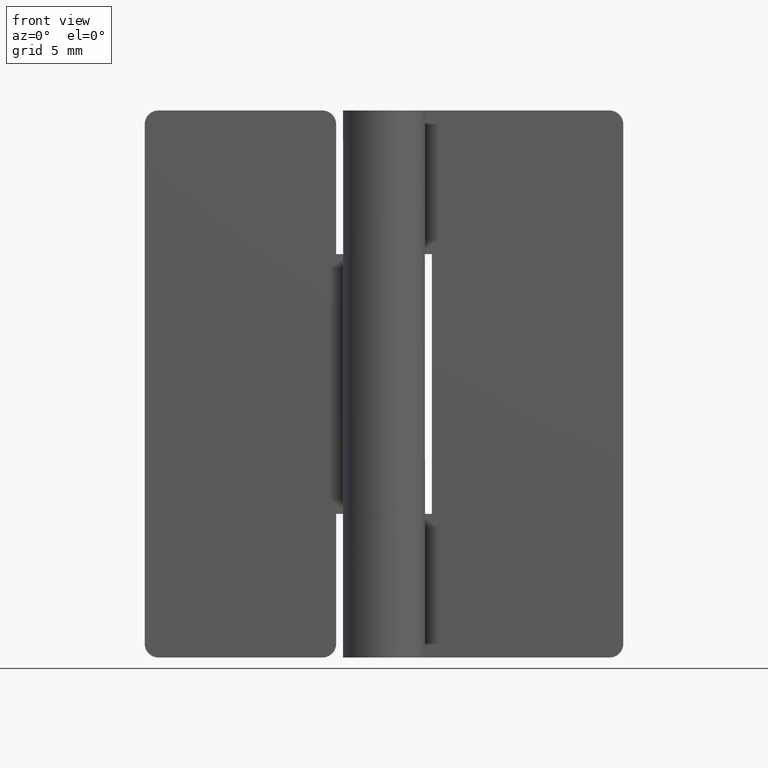
[diagram: clean part render]
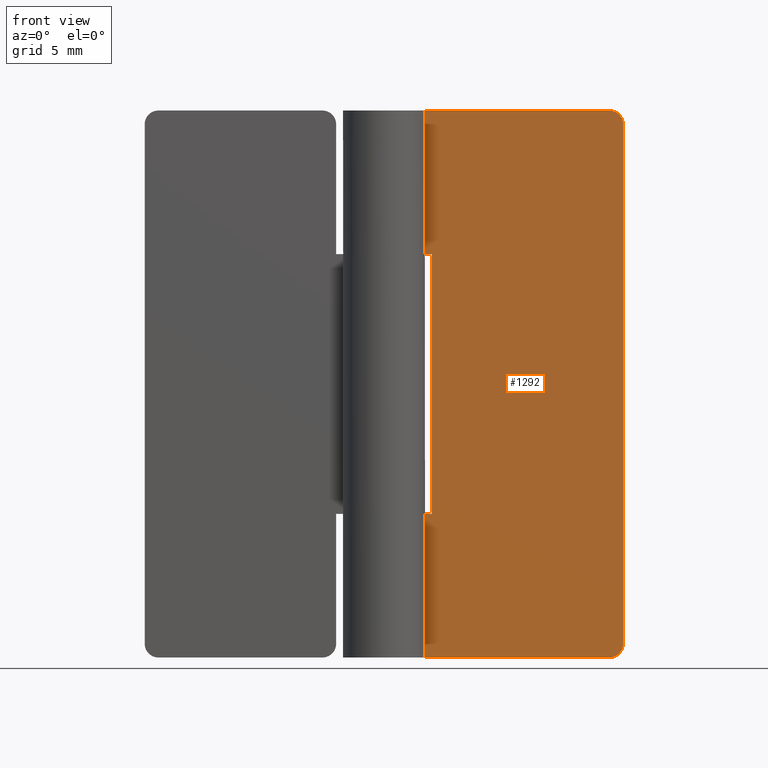
[diagram: same view with one face highlighted and labeled with its STEP entity id]
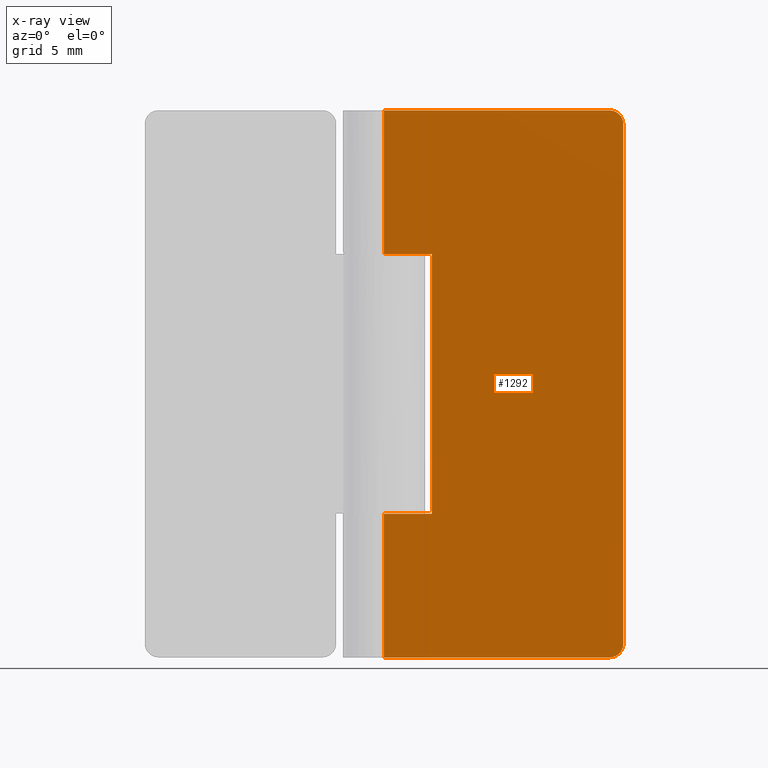
[diagram: x-ray of the same camera — body ghosted, the highlighted face saturated]
A machine part, front view. The second image highlights one B-rep face of the part: STEP entity #1292.
The next image is the same camera in x-ray: the body ghosted, the highlighted face saturated — about 0% of this face is hidden behind the body in this view.
In plain terms, the highlighted face is a freeform B-spline surface patch.
Its self-contained STEP definition (entity closure, byte-faithful):
#742=CARTESIAN_POINT('',(17.500000000000000,1.500000000000000,1.0));
#743=VERTEX_POINT('',#742);
#749=CARTESIAN_POINT('',(16.500000000000000,1.500000000000000,0.0));
#750=VERTEX_POINT('',#749);
#751=CARTESIAN_POINT('',(16.500000000000000,1.500000000000000,0.0));
#752=CARTESIAN_POINT('',(17.499999999999996,1.500000000000000,0.0));
#753=CARTESIAN_POINT('',(17.500000000000000,1.500000000000000,1.0));
#761=(BOUNDED_CURVE()B_SPLINE_CURVE(2,(#751,#752,#753),.UNSPECIFIED.,.F.,.U.)CURVE()GEOMETRIC_REPRESENTATION_ITEM()QUASI_UNIFORM_CURVE()RATIONAL_B_SPLINE_CURVE((1.0,0.707106781186548,1.0))REPRESENTATION_ITEM(''));
#762=EDGE_CURVE('',#750,#743,#761,.T.);
#803=CARTESIAN_POINT('',(16.500000000000000,1.500000000000000,40.0));
#804=VERTEX_POINT('',#803);
#810=CARTESIAN_POINT('',(17.500000000000000,1.500000000000000,39.0));
#811=VERTEX_POINT('',#810);
#812=CARTESIAN_POINT('',(17.500000000000000,1.500000000000000,39.0));
#813=CARTESIAN_POINT('',(17.499999999999996,1.500000000000000,39.999999999999993));
#814=CARTESIAN_POINT('',(16.500000000000000,1.500000000000000,40.0));
#822=(BOUNDED_CURVE()B_SPLINE_CURVE(2,(#812,#813,#814),.UNSPECIFIED.,.F.,.U.)CURVE()GEOMETRIC_REPRESENTATION_ITEM()QUASI_UNIFORM_CURVE()RATIONAL_B_SPLINE_CURVE((1.0,0.707106781186548,1.0))REPRESENTATION_ITEM(''));
#823=EDGE_CURVE('',#811,#804,#822,.T.);
#868=CARTESIAN_POINT('',(0.0,1.500000000000000,10.500000000000000));
#869=VERTEX_POINT('',#868);
#889=CARTESIAN_POINT('',(3.500000000000000,1.499999999999946,10.500000000000000));
#890=VERTEX_POINT('',#889);
#891=CARTESIAN_POINT('',(3.500000000000000,1.499999999999946,10.500000000000000));
#892=CARTESIAN_POINT('',(0.0,1.500000000000000,10.500000000000000));
#893=QUASI_UNIFORM_CURVE('',1,(#891,#892),.UNSPECIFIED.,.F.,.U.);
#894=EDGE_CURVE('',#890,#869,#893,.T.);
#925=CARTESIAN_POINT('',(3.500000000000000,1.499999999999946,29.500000000000000));
#926=VERTEX_POINT('',#925);
#932=CARTESIAN_POINT('',(0.0,1.500000000000000,29.500000000000000));
#933=VERTEX_POINT('',#932);
#934=CARTESIAN_POINT('',(0.0,1.500000000000000,29.500000000000000));
#935=CARTESIAN_POINT('',(3.500000000000000,1.499999999999946,29.500000000000000));
#936=QUASI_UNIFORM_CURVE('',1,(#934,#935),.UNSPECIFIED.,.F.,.U.);
#937=EDGE_CURVE('',#933,#926,#936,.T.);
#1001=CARTESIAN_POINT('',(3.500000000000000,1.499999999999946,29.500000000000000));
#1002=CARTESIAN_POINT('',(3.500000000000000,1.499999999999946,10.500000000000000));
#1003=QUASI_UNIFORM_CURVE('',1,(#1001,#1002),.UNSPECIFIED.,.F.,.U.);
#1004=EDGE_CURVE('',#926,#890,#1003,.T.);
#1022=CARTESIAN_POINT('',(0.0,1.500000000000000,0.0));
#1023=VERTEX_POINT('',#1022);
#1024=CARTESIAN_POINT('',(16.500000000000000,1.500000000000000,0.0));
#1025=CARTESIAN_POINT('',(0.0,1.500000000000000,0.0));
#1026=QUASI_UNIFORM_CURVE('',1,(#1024,#1025),.UNSPECIFIED.,.F.,.U.);
#1027=EDGE_CURVE('',#750,#1023,#1026,.T.);
#1084=CARTESIAN_POINT('',(0.0,1.500000000000000,40.0));
#1085=VERTEX_POINT('',#1084);
#1086=CARTESIAN_POINT('',(16.500000000000000,1.500000000000000,40.0));
#1087=CARTESIAN_POINT('',(0.0,1.500000000000000,40.0));
#1088=QUASI_UNIFORM_CURVE('',1,(#1086,#1087),.UNSPECIFIED.,.F.,.U.);
#1089=EDGE_CURVE('',#804,#1085,#1088,.T.);
#1154=CARTESIAN_POINT('',(17.500000000000000,1.500000000000000,39.0));
#1155=CARTESIAN_POINT('',(17.500000000000000,1.500000000000000,1.0));
#1156=QUASI_UNIFORM_CURVE('',1,(#1154,#1155),.UNSPECIFIED.,.F.,.U.);
#1157=EDGE_CURVE('',#811,#743,#1156,.T.);
#1234=CARTESIAN_POINT('',(0.0,1.500000000000000,10.500000000000000));
#1235=CARTESIAN_POINT('',(0.0,1.500000000000000,0.0));
#1236=QUASI_UNIFORM_CURVE('',1,(#1234,#1235),.UNSPECIFIED.,.F.,.U.);
#1237=EDGE_CURVE('',#869,#1023,#1236,.T.);
#1265=CARTESIAN_POINT('',(0.0,1.500000000000000,40.0));
#1266=CARTESIAN_POINT('',(0.0,1.500000000000000,29.500000000000000));
#1267=QUASI_UNIFORM_CURVE('',1,(#1265,#1266),.UNSPECIFIED.,.F.,.U.);
#1268=EDGE_CURVE('',#1085,#933,#1267,.T.);
#1275=CARTESIAN_POINT('',(-0.874124966081605,1.500000000000000,41.997999922472239));
#1276=CARTESIAN_POINT('',(-0.874124966081605,1.500000000000000,-1.998000995355844));
#1277=CARTESIAN_POINT('',(18.374125435468180,1.500000000000000,41.997999922472239));
#1278=CARTESIAN_POINT('',(18.374125435468180,1.500000000000000,-1.998000995355844));
#1279=B_SPLINE_SURFACE_WITH_KNOTS('',1,1,((#1275,#1277),(#1276,#1278)),.UNSPECIFIED.,.F.,.F.,.U.,(2,2),(2,2),(0.0,43.996000917828077),(0.0,19.248250401549790),.UNSPECIFIED.);
#1280=ORIENTED_EDGE('',*,*,#1027,.F.);
#1281=ORIENTED_EDGE('',*,*,#762,.T.);
#1282=ORIENTED_EDGE('',*,*,#1157,.F.);
#1283=ORIENTED_EDGE('',*,*,#823,.T.);
#1284=ORIENTED_EDGE('',*,*,#1089,.T.);
#1285=ORIENTED_EDGE('',*,*,#1268,.T.);
#1286=ORIENTED_EDGE('',*,*,#937,.T.);
#1287=ORIENTED_EDGE('',*,*,#1004,.T.);
#1288=ORIENTED_EDGE('',*,*,#894,.T.);
#1289=ORIENTED_EDGE('',*,*,#1237,.T.);
#1290=EDGE_LOOP('',(#1280,#1281,#1282,#1283,#1284,#1285,#1286,#1287,#1288,#1289));
#1291=FACE_OUTER_BOUND('',#1290,.T.);
#1292=ADVANCED_FACE('',(#1291),#1279,.T.);